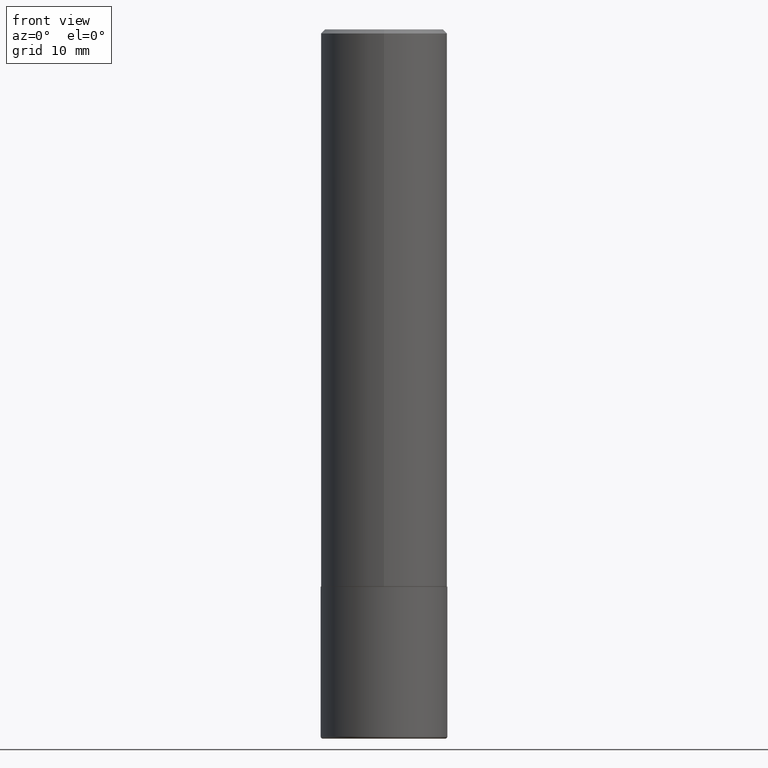
[diagram: clean part render]
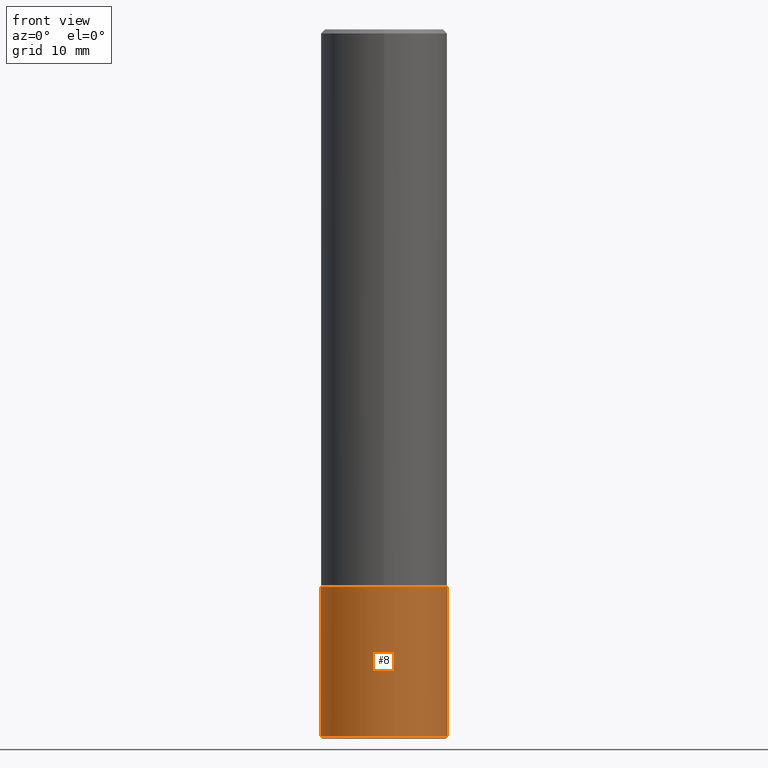
[diagram: same view with one face highlighted and labeled with its STEP entity id]
A machine part, front view. The second image highlights one B-rep face of the part: STEP entity #8.
In plain terms, the highlighted cylindrical surface (partial cylindrical patch) has radius 7.9375 mm, axis along (-0, 0, 1).
Its self-contained STEP definition (entity closure, byte-faithful):
#8 = ADVANCED_FACE ( 'NONE', ( #42 ), #159, .T. ) ;
#11 = CARTESIAN_POINT ( 'NONE',  ( 0.3125000000000000000, -2.182175836776958347E-15, 1.523805242436230075E-29 ) ) ;
#42 = FACE_OUTER_BOUND ( 'NONE', #337, .T. ) ;
#47 = DIRECTION ( 'NONE',  ( -2.445468806185136597E-29, 3.491481338843145583E-15, 1.000000000000000000 ) ) ;
#54 = ORIENTED_EDGE ( 'NONE', *, *, #388, .T. ) ;
#56 = CARTESIAN_POINT ( 'NONE',  ( 0.3125000000000000000, -1.178374951859560978E-14, -2.750000000000000000 ) ) ;
#60 = AXIS2_PLACEMENT_3D ( 'NONE', #402, #105, #256 ) ;
#65 = VERTEX_POINT ( 'NONE', #56 ) ;
#86 = DIRECTION ( 'NONE',  ( 1.000000000000000000, -6.982962677686269077E-15, 0.000000000000000000 ) ) ;
#87 = VECTOR ( 'NONE', #133, 39.37007874015748143 ) ;
#94 = CIRCLE ( 'NONE', #99, 0.3125000000000000000 ) ;
#99 = AXIS2_PLACEMENT_3D ( 'NONE', #339, #47, #86 ) ;
#105 = DIRECTION ( 'NONE',  ( -2.445468806185136597E-29, 3.491481338843145583E-15, 1.000000000000000000 ) ) ;
#109 = CARTESIAN_POINT ( 'NONE',  ( -0.3124999999999998890, -9.964823823312263034E-15, -3.489999999999999769 ) ) ;
#126 = CIRCLE ( 'NONE', #60, 0.3125000000000000000 ) ;
#128 = EDGE_CURVE ( 'NONE', #398, #65, #94, .T. ) ;
#133 = DIRECTION ( 'NONE',  ( -2.445468806185136877E-29, 3.491481338843145188E-15, 1.000000000000000000 ) ) ;
#143 = DIRECTION ( 'NONE',  ( -2.445468806185136597E-29, 3.491481338843145583E-15, 1.000000000000000000 ) ) ;
#147 = EDGE_CURVE ( 'NONE', #206, #398, #245, .T. ) ;
#159 = CYLINDRICAL_SURFACE ( 'NONE', #344, 0.3125000000000000000 ) ;
#197 = CARTESIAN_POINT ( 'NONE',  ( -0.3125000000000000000, -8.672975727940299906E-15, -2.750000000000000000 ) ) ;
#206 = VERTEX_POINT ( 'NONE', #109 ) ;
#212 = CARTESIAN_POINT ( 'NONE',  ( 0.000000000000000000, 0.000000000000000000, 0.000000000000000000 ) ) ;
#213 = VECTOR ( 'NONE', #248, 39.37007874015748143 ) ;
#234 = ORIENTED_EDGE ( 'NONE', *, *, #282, .T. ) ;
#245 = LINE ( 'NONE', #414, #213 ) ;
#248 = DIRECTION ( 'NONE',  ( -2.445468806185136877E-29, 3.491481338843145188E-15, 1.000000000000000000 ) ) ;
#256 = DIRECTION ( 'NONE',  ( 1.000000000000000000, -6.982962677686269077E-15, 0.000000000000000000 ) ) ;
#273 = CARTESIAN_POINT ( 'NONE',  ( 0.3124999999999998890, -1.436744570933953446E-14, -3.489999999999999769 ) ) ;
#282 = EDGE_CURVE ( 'NONE', #340, #65, #332, .T. ) ;
#292 = ORIENTED_EDGE ( 'NONE', *, *, #128, .F. ) ;
#309 = DIRECTION ( 'NONE',  ( 1.000000000000000000, -6.982962677686266711E-15, 4.876176775795936353E-29 ) ) ;
#332 = LINE ( 'NONE', #11, #87 ) ;
#335 = ORIENTED_EDGE ( 'NONE', *, *, #147, .F. ) ;
#337 = EDGE_LOOP ( 'NONE', ( #335, #54, #234, #292 ) ) ;
#339 = CARTESIAN_POINT ( 'NONE',  ( 6.725039217009124520E-29, -9.601573681818649859E-15, -2.750000000000000000 ) ) ;
#340 = VERTEX_POINT ( 'NONE', #273 ) ;
#344 = AXIS2_PLACEMENT_3D ( 'NONE', #212, #143, #309 ) ;
#388 = EDGE_CURVE ( 'NONE', #206, #340, #126, .T. ) ;
#398 = VERTEX_POINT ( 'NONE', #197 ) ;
#402 = CARTESIAN_POINT ( 'NONE',  ( 8.534686133586126543E-29, -1.218526987256257612E-14, -3.489999999999999769 ) ) ;
#414 = CARTESIAN_POINT ( 'NONE',  ( -0.3125000000000000000, 2.220446049250313081E-15, -1.537167215704658232E-29 ) ) ;